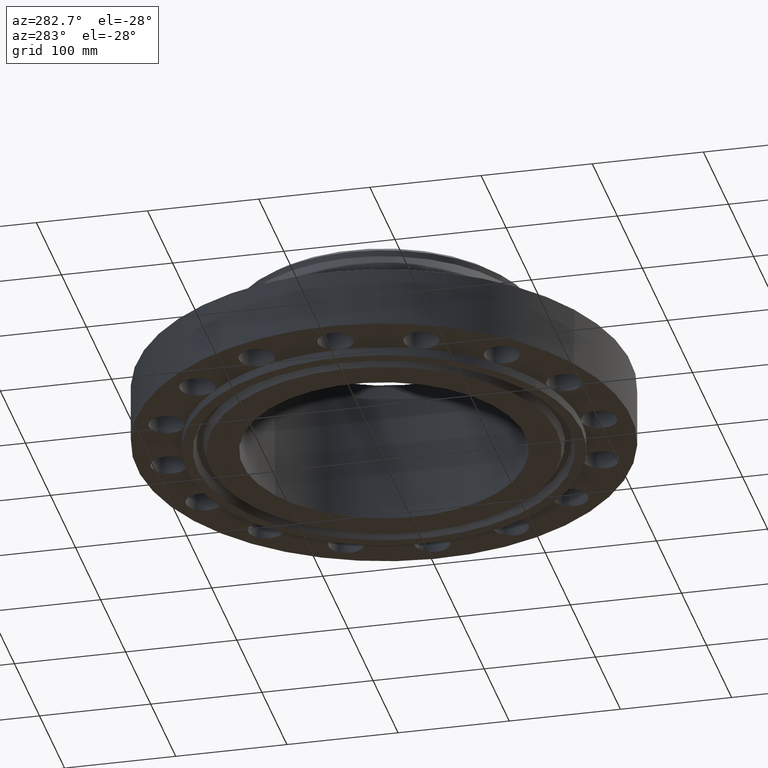
[diagram: clean part render]
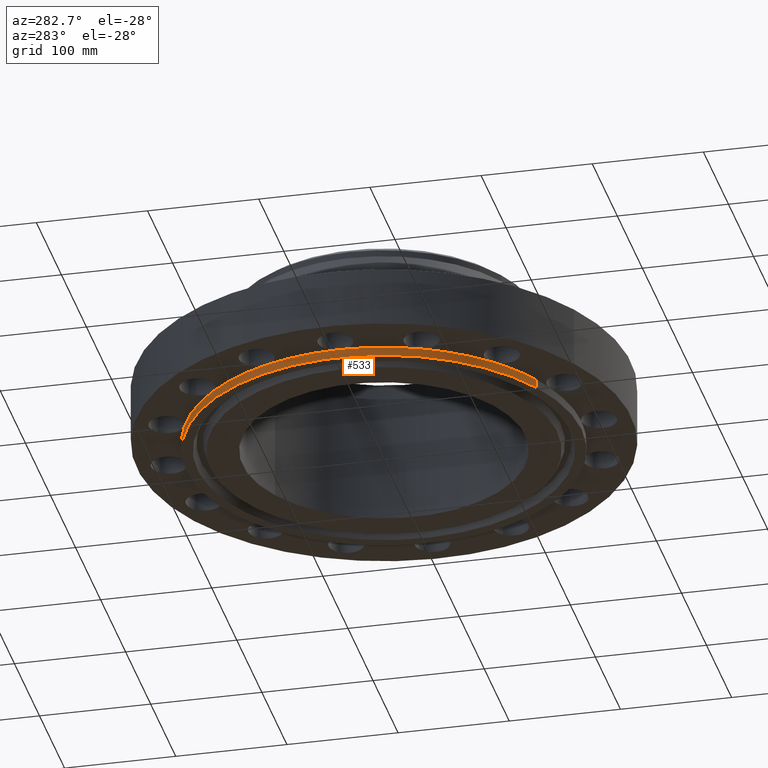
[diagram: same view with one face highlighted and labeled with its STEP entity id]
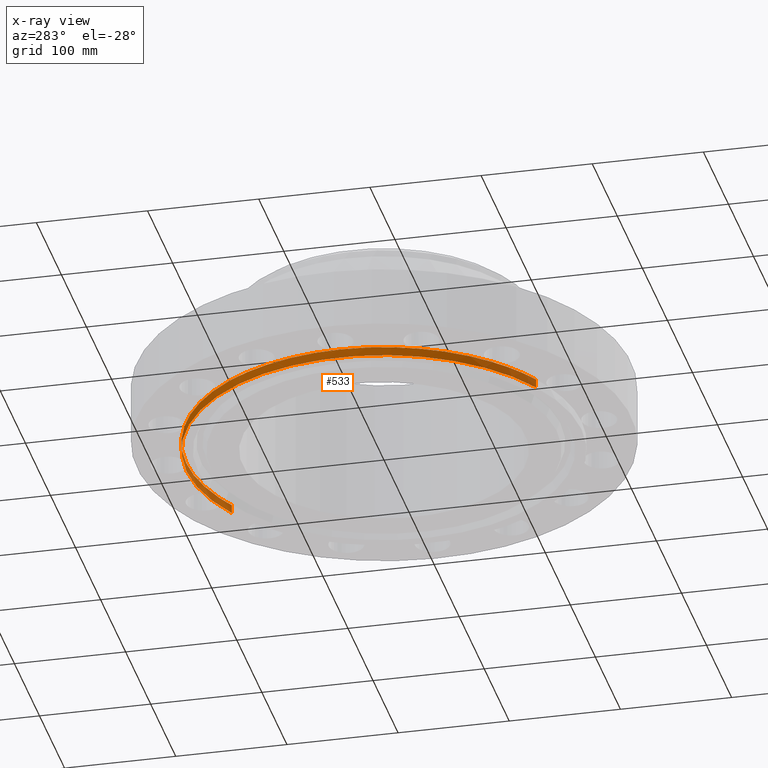
[diagram: x-ray of the same camera — body ghosted, the highlighted face saturated]
A machine part, auxiliary view. The second image highlights one B-rep face of the part: STEP entity #533.
The next image is the same camera in x-ray: the body ghosted, the highlighted face saturated — about 0% of this face is hidden behind the body in this view.
In plain terms, the highlighted cylindrical surface (partial cylindrical patch) has radius 177.8 mm, axis along (0, 0, -1).
Its self-contained STEP definition (entity closure, byte-faithful):
#435=AXIS2_PLACEMENT_3D('Cylinder Axis2P3D',#432,#433,#434) ;
#439=AXIS2_PLACEMENT_3D('Circle Axis2P3D',#437,#438,$) ;
#455=AXIS2_PLACEMENT_3D('Circle Axis2P3D',#453,#454,$) ;
#462=AXIS2_PLACEMENT_3D('Circle Axis2P3D',#460,#461,$) ;
#469=AXIS2_PLACEMENT_3D('Circle Axis2P3D',#467,#468,$) ;
#476=AXIS2_PLACEMENT_3D('Circle Axis2P3D',#474,#475,$) ;
#483=AXIS2_PLACEMENT_3D('Circle Axis2P3D',#481,#482,$) ;
#490=AXIS2_PLACEMENT_3D('Circle Axis2P3D',#488,#489,$) ;
#497=AXIS2_PLACEMENT_3D('Circle Axis2P3D',#495,#496,$) ;
#502=AXIS2_PLACEMENT_3D('Circle Axis2P3D',#500,#501,$) ;
#509=AXIS2_PLACEMENT_3D('Circle Axis2P3D',#507,#508,$) ;
#79=CARTESIAN_POINT('Vertex',(-3.00038465792E-015,7.00000000003,8.39223703654E-016)) ;
#432=CARTESIAN_POINT('Axis2P3D Location',(0.,0.,2.28350000001)) ;
#437=CARTESIAN_POINT('Axis2P3D Location',(0.,0.,-0.313000000001)) ;
#441=CARTESIAN_POINT('Vertex',(-3.35597877024,-6.14307793326,-0.313000000001)) ;
#443=CARTESIAN_POINT('Vertex',(3.35597877024,6.14307793326,-0.313000000001)) ;
#446=CARTESIAN_POINT('Line Origine',(-3.35597877024,-6.14307793326,-0.156500000001)) ;
#450=CARTESIAN_POINT('Vertex',(-3.35597877024,-6.14307793326,5.59482469102E-016)) ;
#453=CARTESIAN_POINT('Axis2P3D Location',(0.,0.,8.39223703654E-016)) ;
#457=CARTESIAN_POINT('Vertex',(-4.94974746833,-4.94974746833,0.)) ;
#460=CARTESIAN_POINT('Axis2P3D Location',(0.,0.,8.39223703654E-016)) ;
#464=CARTESIAN_POINT('Vertex',(-6.4671567276,-2.67878402657,0.)) ;
#467=CARTESIAN_POINT('Axis2P3D Location',(0.,0.,8.39223703654E-016)) ;
#471=CARTESIAN_POINT('Vertex',(-7.00000000003,-2.23792987641E-015,0.)) ;
#474=CARTESIAN_POINT('Axis2P3D Location',(0.,0.,8.39223703654E-016)) ;
#478=CARTESIAN_POINT('Vertex',(-6.4671567276,2.67878402657,0.)) ;
#481=CARTESIAN_POINT('Axis2P3D Location',(0.,0.,8.39223703654E-016)) ;
#485=CARTESIAN_POINT('Vertex',(-4.94974746833,4.94974746833,0.)) ;
#488=CARTESIAN_POINT('Axis2P3D Location',(0.,0.,8.39223703654E-016)) ;
#492=CARTESIAN_POINT('Vertex',(-2.67878402657,6.4671567276,0.)) ;
#495=CARTESIAN_POINT('Axis2P3D Location',(0.,0.,8.39223703654E-016)) ;
#500=CARTESIAN_POINT('Axis2P3D Location',(0.,0.,8.39223703654E-016)) ;
#504=CARTESIAN_POINT('Vertex',(2.67878402657,6.4671567276,0.)) ;
#507=CARTESIAN_POINT('Axis2P3D Location',(0.,0.,8.39223703654E-016)) ;
#511=CARTESIAN_POINT('Vertex',(3.35597877024,6.14307793326,5.59482469102E-016)) ;
#514=CARTESIAN_POINT('Line Origine',(3.35597877024,6.14307793326,-0.156500000001)) ;
#433=DIRECTION('Axis2P3D Direction',(0.,0.,-0.0393700787402)) ;
#434=DIRECTION('Axis2P3D XDirection',(0.0188750212049,0.0345504945626,0.)) ;
#438=DIRECTION('Axis2P3D Direction',(0.,0.,-0.0393700787402)) ;
#447=DIRECTION('Vector Direction',(0.,0.,-0.0393700787402)) ;
#454=DIRECTION('Axis2P3D Direction',(0.,0.,-0.0393700787402)) ;
#461=DIRECTION('Axis2P3D Direction',(0.,0.,-0.0393700787402)) ;
#468=DIRECTION('Axis2P3D Direction',(0.,0.,-0.0393700787402)) ;
#475=DIRECTION('Axis2P3D Direction',(0.,0.,-0.0393700787402)) ;
#482=DIRECTION('Axis2P3D Direction',(0.,0.,-0.0393700787402)) ;
#489=DIRECTION('Axis2P3D Direction',(0.,0.,-0.0393700787402)) ;
#496=DIRECTION('Axis2P3D Direction',(0.,0.,-0.0393700787402)) ;
#501=DIRECTION('Axis2P3D Direction',(0.,0.,-0.0393700787402)) ;
#508=DIRECTION('Axis2P3D Direction',(0.,0.,-0.0393700787402)) ;
#515=DIRECTION('Vector Direction',(0.,0.,-0.0393700787402)) ;
#448=VECTOR('Line Direction',#447,0.0393700787402) ;
#516=VECTOR('Line Direction',#515,0.0393700787402) ;
#520=ORIENTED_EDGE('',*,*,#445,.F.) ;
#521=ORIENTED_EDGE('',*,*,#452,.T.) ;
#522=ORIENTED_EDGE('',*,*,#459,.T.) ;
#523=ORIENTED_EDGE('',*,*,#466,.T.) ;
#524=ORIENTED_EDGE('',*,*,#473,.T.) ;
#525=ORIENTED_EDGE('',*,*,#480,.T.) ;
#526=ORIENTED_EDGE('',*,*,#487,.T.) ;
#527=ORIENTED_EDGE('',*,*,#494,.T.) ;
#528=ORIENTED_EDGE('',*,*,#499,.T.) ;
#529=ORIENTED_EDGE('',*,*,#506,.T.) ;
#530=ORIENTED_EDGE('',*,*,#513,.T.) ;
#531=ORIENTED_EDGE('',*,*,#518,.F.) ;
#533=ADVANCED_FACE('PartBody',(#532),#436,.T.) ;
#440=CIRCLE('generated circle',#439,7.00000000003) ;
#456=CIRCLE('generated circle',#455,7.00000000003) ;
#463=CIRCLE('generated circle',#462,7.00000000003) ;
#470=CIRCLE('generated circle',#469,7.00000000003) ;
#477=CIRCLE('generated circle',#476,7.00000000003) ;
#484=CIRCLE('generated circle',#483,7.00000000003) ;
#491=CIRCLE('generated circle',#490,7.00000000003) ;
#498=CIRCLE('generated circle',#497,7.00000000003) ;
#503=CIRCLE('generated circle',#502,7.00000000003) ;
#510=CIRCLE('generated circle',#509,7.00000000003) ;
#436=CYLINDRICAL_SURFACE('generated cylinder',#435,7.00000000003) ;
#445=EDGE_CURVE('',#442,#444,#440,.T.) ;
#452=EDGE_CURVE('',#442,#451,#449,.F.) ;
#459=EDGE_CURVE('',#451,#458,#456,.T.) ;
#466=EDGE_CURVE('',#458,#465,#463,.T.) ;
#473=EDGE_CURVE('',#465,#472,#470,.T.) ;
#480=EDGE_CURVE('',#472,#479,#477,.T.) ;
#487=EDGE_CURVE('',#479,#486,#484,.T.) ;
#494=EDGE_CURVE('',#486,#493,#491,.T.) ;
#499=EDGE_CURVE('',#493,#80,#498,.T.) ;
#506=EDGE_CURVE('',#80,#505,#503,.T.) ;
#513=EDGE_CURVE('',#505,#512,#510,.T.) ;
#518=EDGE_CURVE('',#444,#512,#517,.F.) ;
#519=EDGE_LOOP('',(#520,#521,#522,#523,#524,#525,#526,#527,#528,#529,#530,#531)) ;
#532=FACE_OUTER_BOUND('',#519,.T.) ;
#449=LINE('Line',#446,#448) ;
#517=LINE('Line',#514,#516) ;
#80=VERTEX_POINT('',#79) ;
#442=VERTEX_POINT('',#441) ;
#444=VERTEX_POINT('',#443) ;
#451=VERTEX_POINT('',#450) ;
#458=VERTEX_POINT('',#457) ;
#465=VERTEX_POINT('',#464) ;
#472=VERTEX_POINT('',#471) ;
#479=VERTEX_POINT('',#478) ;
#486=VERTEX_POINT('',#485) ;
#493=VERTEX_POINT('',#492) ;
#505=VERTEX_POINT('',#504) ;
#512=VERTEX_POINT('',#511) ;